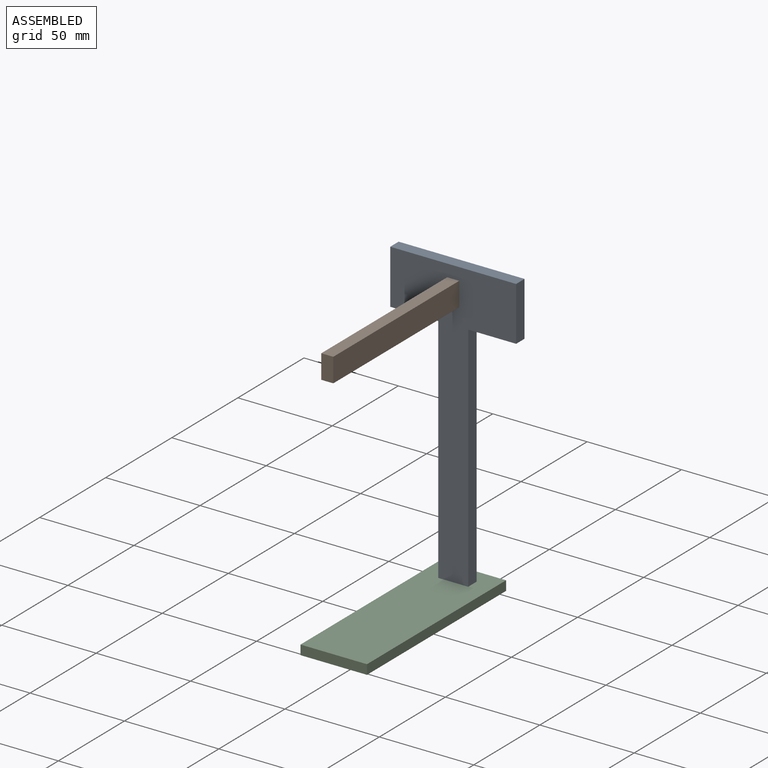
[diagram: assembled view]
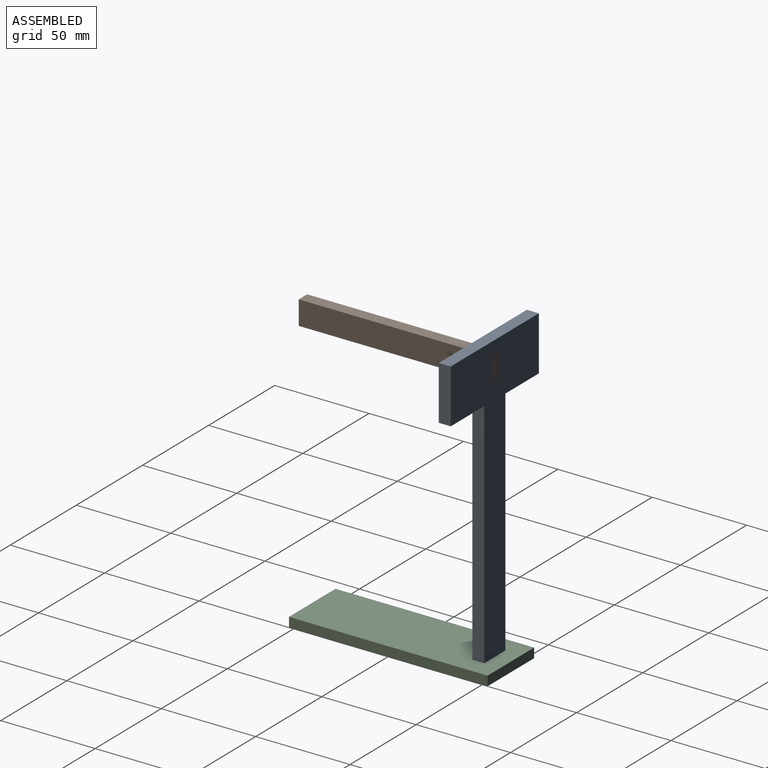
[diagram: assembled view, second angle]
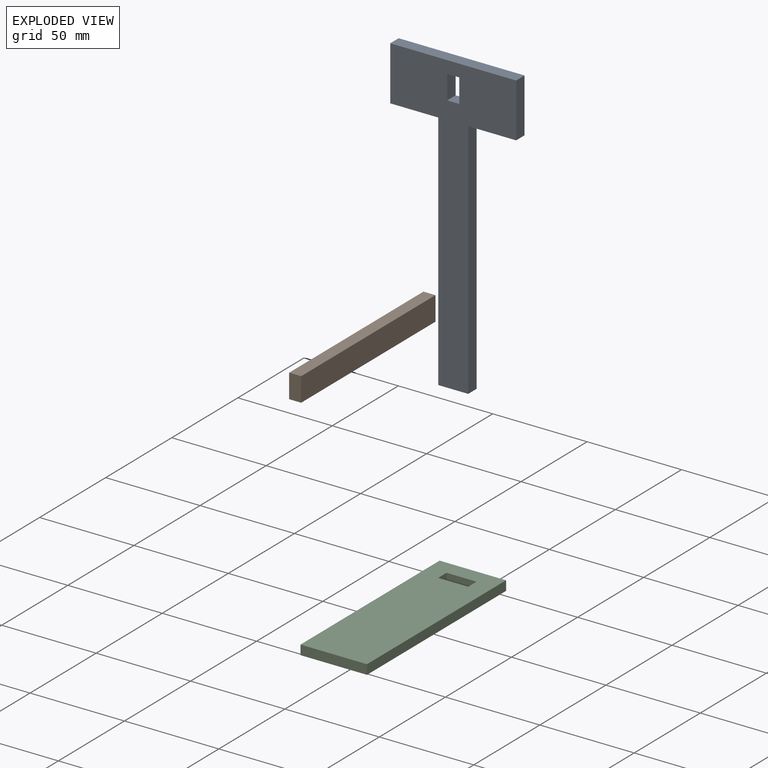
[diagram: exploded view]
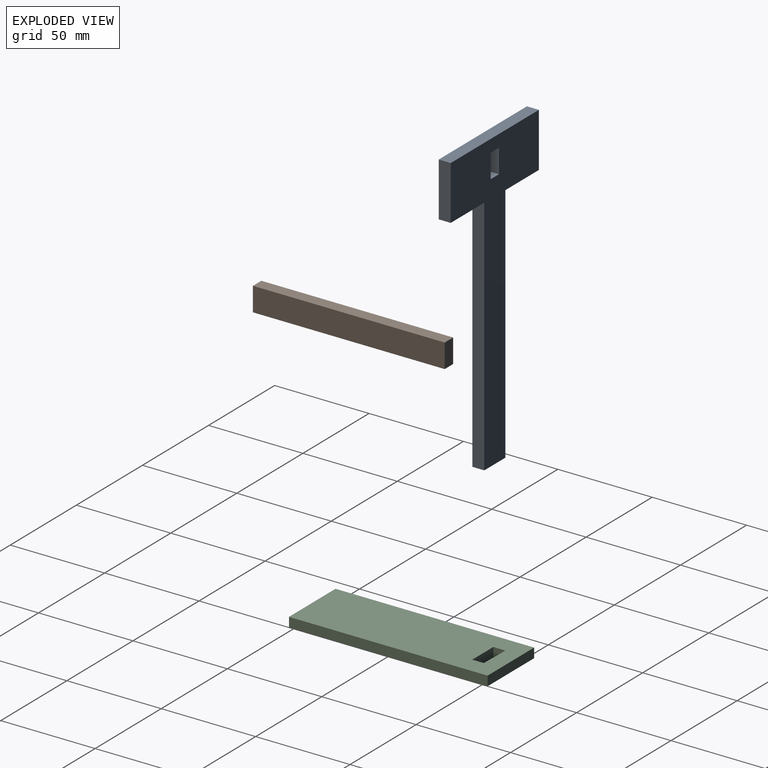
[diagram: exploded view, second angle]
ASSEMBLY  parts=3 mates=2
PART A: 14 faces, bbox 66.7x156.8x6.4 mm
  f0: plane 156.83x66.69mm, normal (0,0,-1), area 3869.9mm2, adj f1,f2,f3,f4,f5,f6,f7,f8
  f1: plane 128.07x6.35mm, normal (-1,0,0), area 813.2mm2, adj f0,f5,f8,f13
  f2: plane 128.18x6.35mm, normal (1,0,0), area 813.9mm2, adj f0,f3,f8,f13
  f3: plane 25.4x6.35mm, normal (0,-1,0), area 161.3mm2, adj f0,f2,f4,f13
  f4: plane 28.65x6.35mm, normal (1,0,0), area 181.9mm2, adj f0,f3,f7,f13
  f5: plane 25.4x6.35mm, normal (0,-1,0), area 161.3mm2, adj f0,f1,f6,f13
  f6: plane 28.76x6.35mm, normal (-1,0,0), area 182.6mm2, adj f0,f5,f7,f13
  f7: plane 66.69x6.35mm, normal (0,1,0), area 423.5mm2, adj f0,f4,f6,f13
  f8: plane 15.89x6.35mm, normal (0,-1,0), area 100.9mm2, adj f0,f1,f2,f13
  f9: plane 6.35x6.35mm, normal (0,-1,0), area 40.3mm2, adj f0,f10,f12,f13
  f10: plane 12.7x6.35mm, normal (1,0,0), area 80.6mm2, adj f0,f9,f11,f13
  f11: plane 6.35x6.35mm, normal (0,1,0), area 40.3mm2, adj f0,f10,f12,f13
  f12: plane 12.7x6.35mm, normal (-1,0,0), area 80.6mm2, adj f0,f9,f11,f13
  f13: plane 156.83x66.69mm, normal (0,0,1), area 3869.9mm2, adj f1,f2,f3,f4,f5,f6,f7,f8
PART B: 6 faces, bbox 101.6x12.7x6.4 mm
  f0: plane 12.7x6.35mm, normal (-1,0,0), area 80.6mm2, adj f1,f3,f4,f5
  f1: plane 101.6x6.35mm, normal (0,-1,0), area 645.2mm2, adj f0,f2,f4,f5
  f2: plane 12.7x6.35mm, normal (1,0,0), area 80.6mm2, adj f1,f3,f4,f5
  f3: plane 101.6x6.35mm, normal (0,1,0), area 645.2mm2, adj f0,f2,f4,f5
  f4: plane 101.6x12.7mm, normal (0,0,1), area 1290.3mm2, adj f0,f1,f2,f3
  f5: plane 101.6x12.7mm, normal (0,0,-1), area 1290.3mm2, adj f0,f1,f2,f3
PART C: 10 faces, bbox 35.2x105.2x5.1 mm
  f0: plane 105.22x35.21mm, normal (0,0,1), area 3603.9mm2, adj f2,f3,f4,f5,f6,f7,f8,f9
  f1: plane 105.22x35.21mm, normal (0,0,-1), area 3603.9mm2, adj f2,f3,f4,f5,f6,f7,f8,f9
  f2: plane 35.21x5.08mm, normal (0,1,0), area 178.9mm2, adj f0,f1,f3,f5
  f3: plane 105.22x5.08mm, normal (-1,0,0), area 534.5mm2, adj f0,f1,f2,f4
  f4: plane 35.21x5.08mm, normal (0,-1,0), area 178.9mm2, adj f0,f1,f3,f5
  f5: plane 105.22x5.08mm, normal (1,0,0), area 534.5mm2, adj f0,f1,f2,f4
  f6: plane 15.89x5.08mm, normal (0,-1,0), area 80.7mm2, adj f0,f1,f7,f9
  f7: plane 6.35x5.08mm, normal (1,0,0), area 32.3mm2, adj f0,f1,f6,f8
  f8: plane 15.89x5.08mm, normal (0,1,0), area 80.7mm2, adj f0,f1,f7,f9
  f9: plane 6.35x5.08mm, normal (-1,0,0), area 32.3mm2, adj f0,f1,f6,f8
PLACE A rot(axis=(1,0,0),90deg) t=(4.72,65.56,-51.84)mm
PLACE B rot(axis=(0.58,-0.58,-0.58),120deg) t=(15.84,65.56,73.02)mm
PLACE C t=(-4.94,-31.15,-77.24)mm
MATE fastened B.f0 <-> A.f0  axis (0,1,0) through (15.84,65.56,60.32)mm
MATE fastened C.f1 <-> A.f8  axis (0,0,-1) through (4.72,65.56,-77.24)mm
